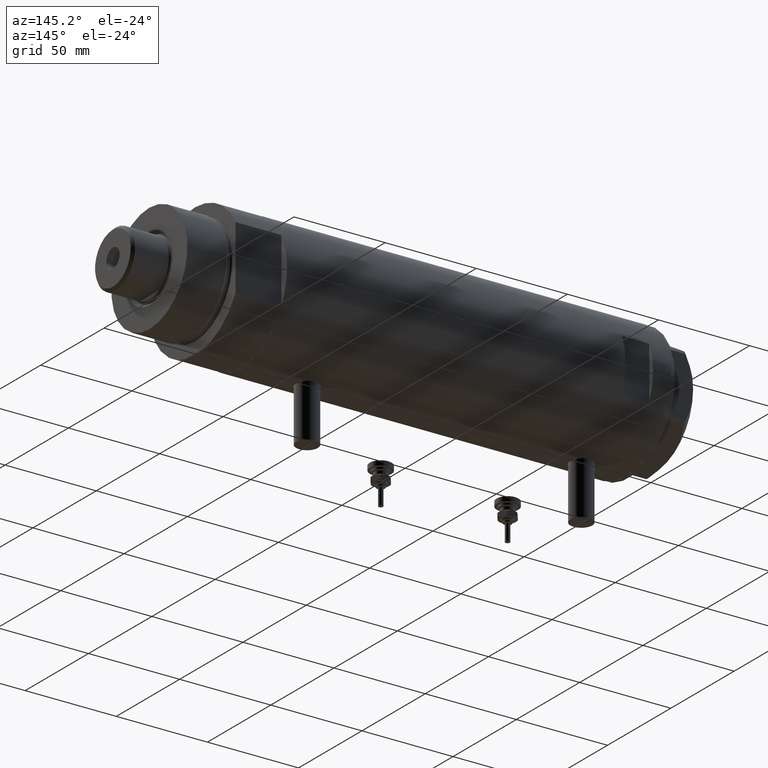
[diagram: clean part render]
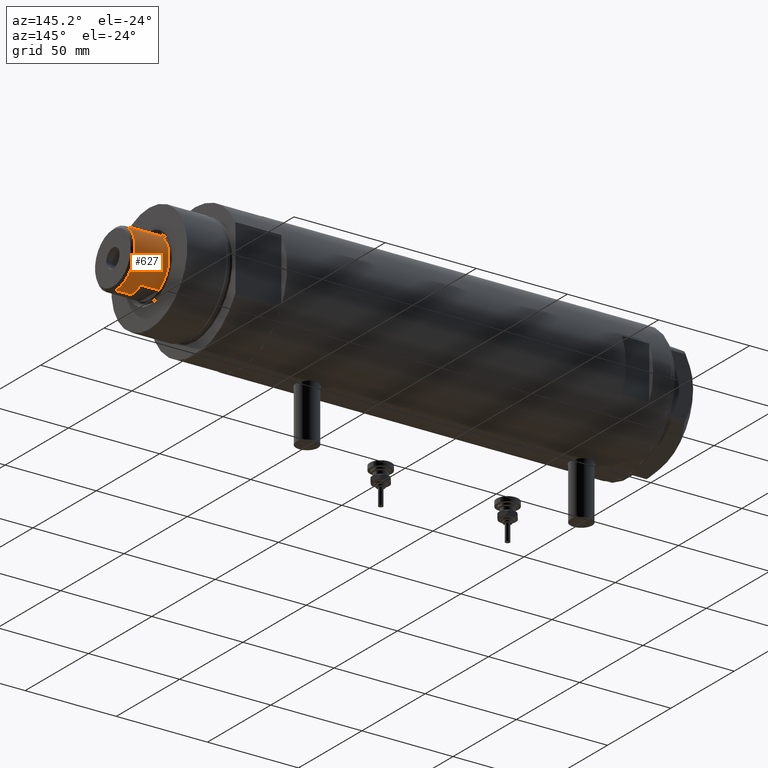
[diagram: same view with one face highlighted and labeled with its STEP entity id]
A machine part, auxiliary view. The second image highlights one B-rep face of the part: STEP entity #627.
In plain terms, the highlighted cylindrical surface (edge-blend (fillet) strip) has radius 15.5 mm, axis along (-1, -0, 0).
Its self-contained STEP definition (entity closure, byte-faithful):
#187 = LINE ( 'NONE', #1136, #1697 ) ;
#191 = EDGE_CURVE ( 'NONE', #1009, #4470, #858, .T. ) ;
#205 = CARTESIAN_POINT ( 'NONE',  ( 13.48630416385452868, 7.639999999999997904, 245.0000000000000284 ) ) ;
#217 = VECTOR ( 'NONE', #3174, 1000.000000000000000 ) ;
#281 = CARTESIAN_POINT ( 'NONE',  ( 0.000000000000000000, 0.000000000000000000, 245.0000000000000284 ) ) ;
#323 = EDGE_CURVE ( 'NONE', #4779, #5345, #4670, .T. ) ;
#403 = LINE ( 'NONE', #899, #1120 ) ;
#488 = CARTESIAN_POINT ( 'NONE',  ( -15.50000000000000178, 0.000000000000000000, 245.0000000000000284 ) ) ;
#627 = ADVANCED_FACE ( 'NONE', ( #5309 ), #3081, .T. ) ;
#722 = DIRECTION ( 'NONE',  ( 0.000000000000000000, 0.000000000000000000, 1.000000000000000000 ) ) ;
#723 = AXIS2_PLACEMENT_3D ( 'NONE', #1218, #722, #3568 ) ;
#858 = LINE ( 'NONE', #883, #217 ) ;
#883 = CARTESIAN_POINT ( 'NONE',  ( 15.49999999999999822, 1.898202538678397163E-15, 245.0000000000000284 ) ) ;
#899 = CARTESIAN_POINT ( 'NONE',  ( -13.48630416385452868, 7.639999999999998792, 245.0000000000000284 ) ) ;
#955 = CARTESIAN_POINT ( 'NONE',  ( 15.50000000000000178, 1.898202538678397557E-15, 245.0000000000000284 ) ) ;
#1006 = AXIS2_PLACEMENT_3D ( 'NONE', #281, #3437, #5703 ) ;
#1009 = VERTEX_POINT ( 'NONE', #4589 ) ;
#1120 = VECTOR ( 'NONE', #4132, 1000.000000000000000 ) ;
#1136 = CARTESIAN_POINT ( 'NONE',  ( -15.49999999999999822, 0.000000000000000000, 245.0000000000000284 ) ) ;
#1207 = VERTEX_POINT ( 'NONE', #4904 ) ;
#1215 = CARTESIAN_POINT ( 'NONE',  ( 0.000000000000000000, 0.000000000000000000, 245.0000000000000284 ) ) ;
#1218 = CARTESIAN_POINT ( 'NONE',  ( 0.000000000000000000, 0.000000000000000000, 235.0000000000000284 ) ) ;
#1248 = CARTESIAN_POINT ( 'NONE',  ( 0.000000000000000000, 0.000000000000000000, 253.5999999999999943 ) ) ;
#1350 = ORIENTED_EDGE ( 'NONE', *, *, #2953, .F. ) ;
#1373 = ORIENTED_EDGE ( 'NONE', *, *, #4392, .T. ) ;
#1387 = VERTEX_POINT ( 'NONE', #488 ) ;
#1520 = AXIS2_PLACEMENT_3D ( 'NONE', #1248, #4336, #5746 ) ;
#1697 = VECTOR ( 'NONE', #3334, 1000.000000000000000 ) ;
#2002 = CIRCLE ( 'NONE', #1520, 15.49999999999999822 ) ;
#2035 = DIRECTION ( 'NONE',  ( -0.000000000000000000, -0.000000000000000000, -1.000000000000000000 ) ) ;
#2233 = CARTESIAN_POINT ( 'NONE',  ( 13.48630416385452868, 7.639999999999997904, 235.0000000000000284 ) ) ;
#2262 = ORIENTED_EDGE ( 'NONE', *, *, #323, .T. ) ;
#2293 = EDGE_CURVE ( 'NONE', #4470, #4779, #3974, .T. ) ;
#2460 = EDGE_LOOP ( 'NONE', ( #1373, #3393, #4416, #2262, #3329, #4812, #3679, #1350 ) ) ;
#2543 = DIRECTION ( 'NONE',  ( 1.000000000000000000, 0.000000000000000000, 0.000000000000000000 ) ) ;
#2628 = VERTEX_POINT ( 'NONE', #3966 ) ;
#2832 = DIRECTION ( 'NONE',  ( 0.000000000000000000, 0.000000000000000000, 1.000000000000000000 ) ) ;
#2917 = CARTESIAN_POINT ( 'NONE',  ( -15.49999999999999822, 0.000000000000000000, 253.5999999999999943 ) ) ;
#2953 = EDGE_CURVE ( 'NONE', #5240, #1387, #187, .T. ) ;
#3081 = CYLINDRICAL_SURFACE ( 'NONE', #4343, 15.49999999999999822 ) ;
#3094 = VECTOR ( 'NONE', #2035, 1000.000000000000000 ) ;
#3174 = DIRECTION ( 'NONE',  ( -0.000000000000000000, -0.000000000000000000, -1.000000000000000000 ) ) ;
#3329 = ORIENTED_EDGE ( 'NONE', *, *, #3392, .T. ) ;
#3334 = DIRECTION ( 'NONE',  ( -0.000000000000000000, -0.000000000000000000, -1.000000000000000000 ) ) ;
#3392 = EDGE_CURVE ( 'NONE', #5345, #1207, #5903, .T. ) ;
#3393 = ORIENTED_EDGE ( 'NONE', *, *, #191, .T. ) ;
#3437 = DIRECTION ( 'NONE',  ( 0.000000000000000000, 0.000000000000000000, 1.000000000000000000 ) ) ;
#3568 = DIRECTION ( 'NONE',  ( 1.000000000000000000, 0.000000000000000000, 0.000000000000000000 ) ) ;
#3679 = ORIENTED_EDGE ( 'NONE', *, *, #5618, .T. ) ;
#3798 = EDGE_CURVE ( 'NONE', #2628, #1207, #403, .T. ) ;
#3966 = CARTESIAN_POINT ( 'NONE',  ( -13.48630416385452868, 7.639999999999998792, 245.0000000000000284 ) ) ;
#3974 = CIRCLE ( 'NONE', #1006, 15.50000000000000000 ) ;
#4132 = DIRECTION ( 'NONE',  ( -0.000000000000000000, -0.000000000000000000, -1.000000000000000000 ) ) ;
#4336 = DIRECTION ( 'NONE',  ( 0.000000000000000000, 0.000000000000000000, -1.000000000000000000 ) ) ;
#4343 = AXIS2_PLACEMENT_3D ( 'NONE', #1215, #4909, #4849 ) ;
#4392 = EDGE_CURVE ( 'NONE', #5240, #1009, #2002, .T. ) ;
#4416 = ORIENTED_EDGE ( 'NONE', *, *, #2293, .T. ) ;
#4470 = VERTEX_POINT ( 'NONE', #955 ) ;
#4589 = CARTESIAN_POINT ( 'NONE',  ( 15.49999999999999822, 1.898202538678397163E-15, 253.5999999999999943 ) ) ;
#4670 = LINE ( 'NONE', #205, #3094 ) ;
#4779 = VERTEX_POINT ( 'NONE', #5439 ) ;
#4812 = ORIENTED_EDGE ( 'NONE', *, *, #3798, .F. ) ;
#4849 = DIRECTION ( 'NONE',  ( -1.000000000000000000, 0.000000000000000000, 0.000000000000000000 ) ) ;
#4904 = CARTESIAN_POINT ( 'NONE',  ( -13.48630416385452513, 7.639999999999804281, 235.0000000000000284 ) ) ;
#4909 = DIRECTION ( 'NONE',  ( -0.000000000000000000, -0.000000000000000000, -1.000000000000000000 ) ) ;
#4960 = AXIS2_PLACEMENT_3D ( 'NONE', #5117, #2832, #2543 ) ;
#5117 = CARTESIAN_POINT ( 'NONE',  ( 0.000000000000000000, 0.000000000000000000, 245.0000000000000284 ) ) ;
#5240 = VERTEX_POINT ( 'NONE', #2917 ) ;
#5309 = FACE_OUTER_BOUND ( 'NONE', #2460, .T. ) ;
#5345 = VERTEX_POINT ( 'NONE', #2233 ) ;
#5351 = CIRCLE ( 'NONE', #4960, 15.50000000000000000 ) ;
#5439 = CARTESIAN_POINT ( 'NONE',  ( 13.48630416385452868, 7.639999999999997904, 245.0000000000000284 ) ) ;
#5618 = EDGE_CURVE ( 'NONE', #2628, #1387, #5351, .T. ) ;
#5703 = DIRECTION ( 'NONE',  ( 1.000000000000000000, 0.000000000000000000, 0.000000000000000000 ) ) ;
#5746 = DIRECTION ( 'NONE',  ( 1.000000000000000000, 0.000000000000000000, 0.000000000000000000 ) ) ;
#5903 = CIRCLE ( 'NONE', #723, 15.49999999999990230 ) ;